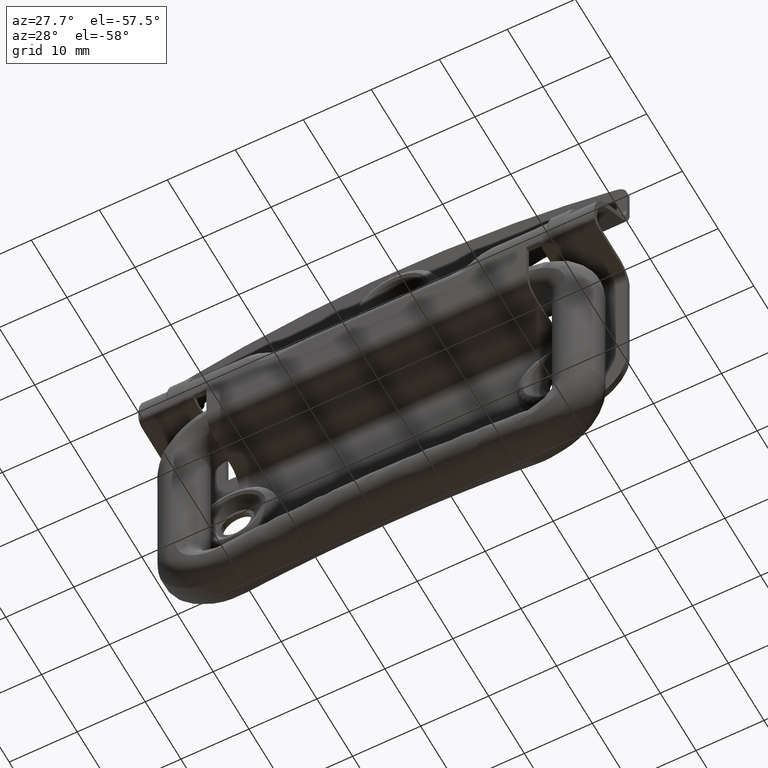
[diagram: clean part render]
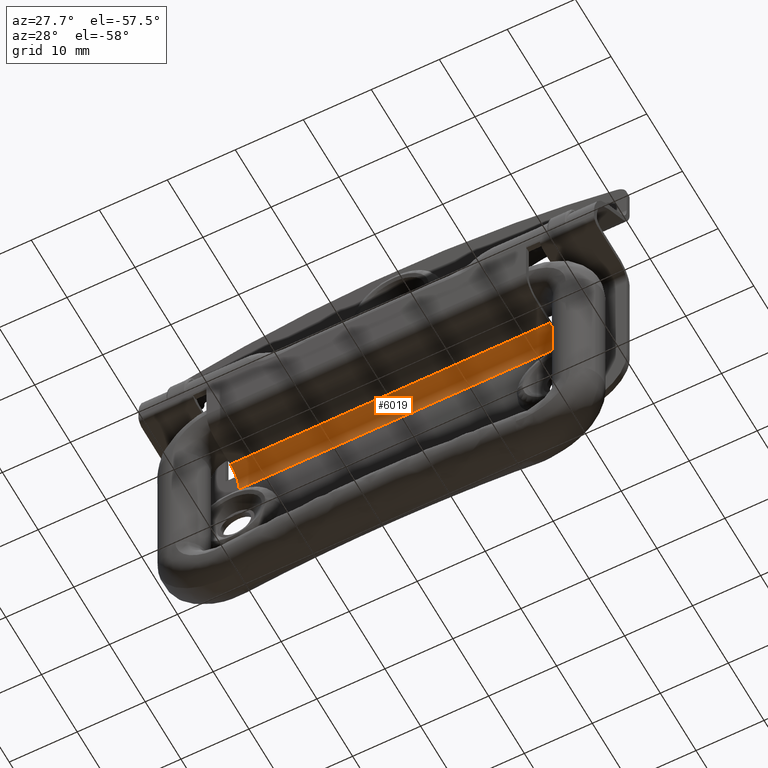
[diagram: same view with one face highlighted and labeled with its STEP entity id]
A machine part, auxiliary view. The second image highlights one B-rep face of the part: STEP entity #6019.
In plain terms, the highlighted face is a freeform B-spline surface patch.
Its self-contained STEP definition (entity closure, byte-faithful):
#5957=CARTESIAN_POINT('',(-24.675000000000001,2.290951531586660,-4.502379446045357));
#5958=CARTESIAN_POINT('',(24.704374999999999,2.290951531586660,-4.502379446045357));
#5959=CARTESIAN_POINT('',(-24.675000000000004,5.090150656023893,-4.380163772883748));
#5960=CARTESIAN_POINT('',(24.704374999999995,5.090150656023893,-4.380163772883748));
#5961=CARTESIAN_POINT('',(-24.675000000000008,4.893857283398309,-7.175145225573513));
#5962=CARTESIAN_POINT('',(24.704374999999995,4.893857283398309,-7.175145225573513));
#5970=(BOUNDED_SURFACE()B_SPLINE_SURFACE(1,2,((#5957,#5959,#5961),(#5958,#5960,#5962)),.UNSPECIFIED.,.F.,.F.,.U.)B_SPLINE_SURFACE_WITH_KNOTS((2,2),(3,3),(0.0,49.379375000000003),(0.0,4.479356344144216),.UNSPECIFIED.)GEOMETRIC_REPRESENTATION_ITEM()RATIONAL_B_SPLINE_SURFACE(((1.0,0.664513898943186,0.996233560452096),(1.0,0.664513898943186,0.996233560452096)))REPRESENTATION_ITEM('')SURFACE());
#5971=CARTESIAN_POINT('',(23.500000000000000,2.399999999999960,-4.499999999999799));
#5972=VERTEX_POINT('',#5971);
#5973=CARTESIAN_POINT('',(23.500000000000000,4.900000000000000,-7.0));
#5974=VERTEX_POINT('',#5973);
#5975=CARTESIAN_POINT('',(23.500000000000000,2.399999999999960,-4.499999999999799));
#5976=CARTESIAN_POINT('',(23.500000000000004,4.900000000000000,-4.500000000000002));
#5977=CARTESIAN_POINT('',(23.500000000000000,4.900000000000000,-7.0));
#5985=(BOUNDED_CURVE()B_SPLINE_CURVE(2,(#5975,#5976,#5977),.UNSPECIFIED.,.F.,.U.)CURVE()GEOMETRIC_REPRESENTATION_ITEM()QUASI_UNIFORM_CURVE()RATIONAL_B_SPLINE_CURVE((1.0,0.707106781186548,1.0))REPRESENTATION_ITEM(''));
#5986=EDGE_CURVE('',#5972,#5974,#5985,.T.);
#5987=ORIENTED_EDGE('',*,*,#5986,.F.);
#5988=CARTESIAN_POINT('',(-23.500000000000000,2.399999999999960,-4.499999999999799));
#5989=VERTEX_POINT('',#5988);
#5990=CARTESIAN_POINT('',(-23.500000000000000,2.399999999999960,-4.499999999999799));
#5991=CARTESIAN_POINT('',(23.500000000000000,2.399999999999960,-4.499999999999799));
#5992=QUASI_UNIFORM_CURVE('',1,(#5990,#5991),.UNSPECIFIED.,.F.,.U.);
#5993=EDGE_CURVE('',#5989,#5972,#5992,.T.);
#5994=ORIENTED_EDGE('',*,*,#5993,.F.);
#5995=CARTESIAN_POINT('',(-23.500000000000000,4.900000000000000,-7.0));
#5996=VERTEX_POINT('',#5995);
#5997=CARTESIAN_POINT('',(-23.500000000000000,4.900000000000000,-7.0));
#5998=CARTESIAN_POINT('',(-23.500000000000004,4.900000000000000,-5.964466094067251));
#5999=CARTESIAN_POINT('',(-23.500000000000000,4.167766952966355,-5.232233047033618));
#6000=CARTESIAN_POINT('',(-23.500000000000004,3.435533905932726,-4.500000000000001));
#6001=CARTESIAN_POINT('',(-23.500000000000000,2.399999999999960,-4.499999999999799));
#6009=(BOUNDED_CURVE()B_SPLINE_CURVE(2,(#5997,#5998,#5999,#6000,#6001),.UNSPECIFIED.,.F.,.U.)B_SPLINE_CURVE_WITH_KNOTS((3,2,3),(0.0,0.500000000000000,1.0),.UNSPECIFIED.)CURVE()GEOMETRIC_REPRESENTATION_ITEM()RATIONAL_B_SPLINE_CURVE((1.0,0.923879532511285,1.0,0.923879532511285,1.0))REPRESENTATION_ITEM(''));
#6010=EDGE_CURVE('',#5996,#5989,#6009,.T.);
#6011=ORIENTED_EDGE('',*,*,#6010,.F.);
#6012=CARTESIAN_POINT('',(23.500000000000000,4.900000000000000,-7.0));
#6013=CARTESIAN_POINT('',(-23.500000000000000,4.900000000000000,-7.0));
#6014=QUASI_UNIFORM_CURVE('',1,(#6012,#6013),.UNSPECIFIED.,.F.,.U.);
#6015=EDGE_CURVE('',#5974,#5996,#6014,.T.);
#6016=ORIENTED_EDGE('',*,*,#6015,.F.);
#6017=EDGE_LOOP('',(#5987,#5994,#6011,#6016));
#6018=FACE_OUTER_BOUND('',#6017,.T.);
#6019=ADVANCED_FACE('',(#6018),#5970,.F.);